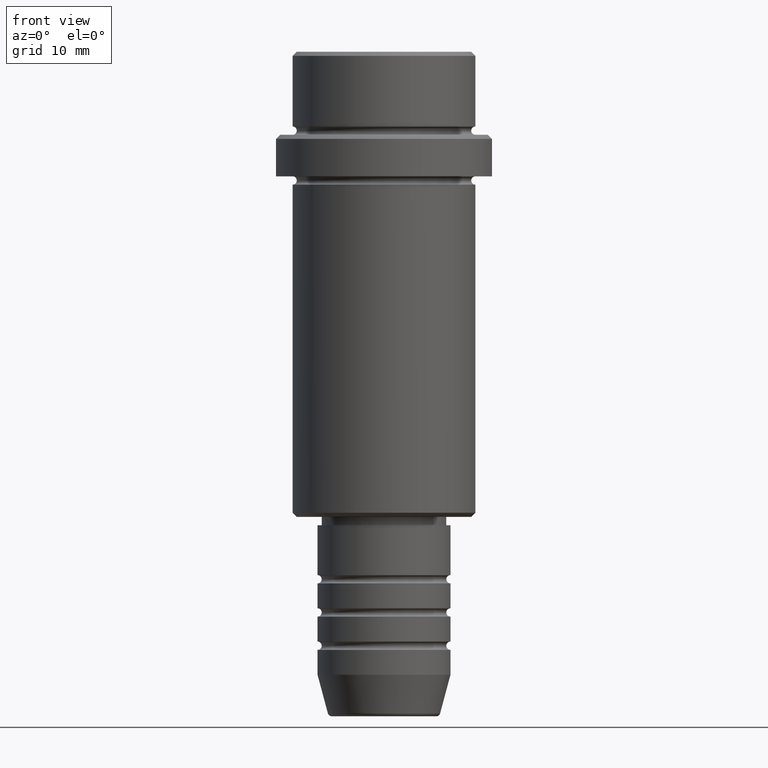
[diagram: clean part render]
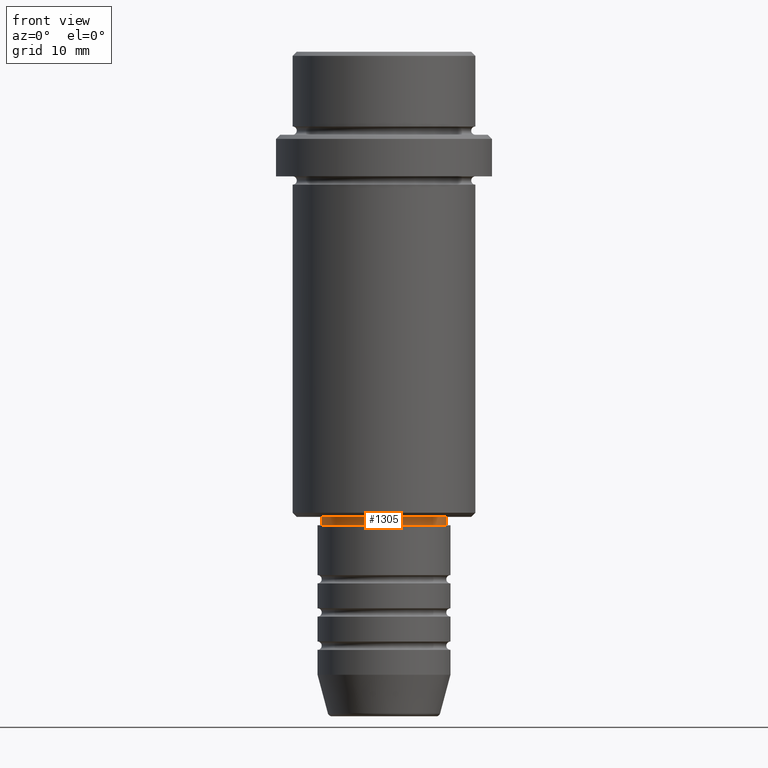
[diagram: same view with one face highlighted and labeled with its STEP entity id]
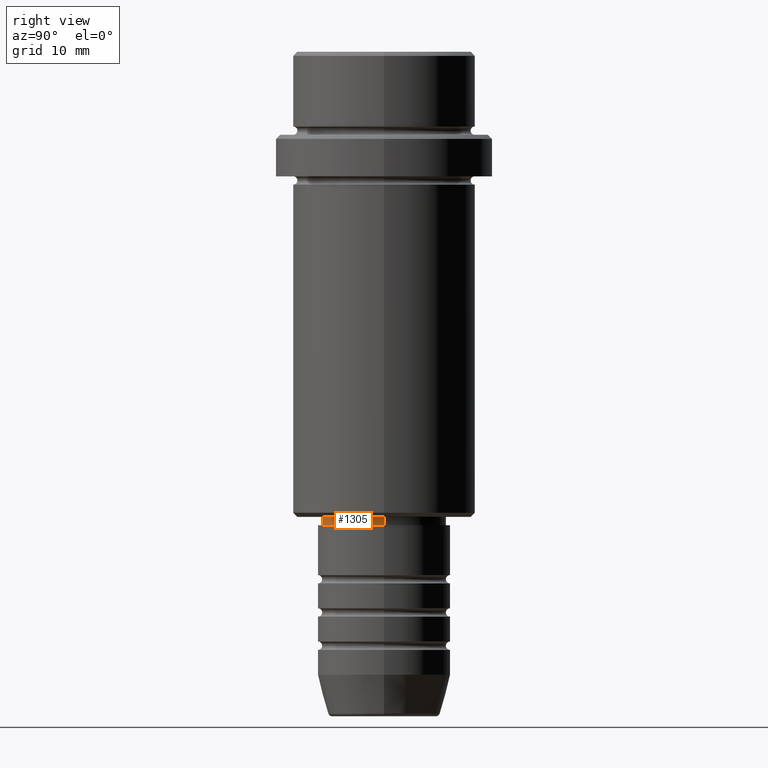
[diagram: same view with one face highlighted and labeled with its STEP entity id]
A machine part, front view. The second image highlights one B-rep face of the part: STEP entity #1305.
A second angle (right view) of the same face is appended — the face is thin or edge-on in the first view.
In plain terms, the highlighted cylindrical surface (partial cylindrical patch) has radius 7.5 mm, axis along (-0, -0, 1).
Its self-contained STEP definition (entity closure, byte-faithful):
#11 = CARTESIAN_POINT ( 'NONE',  ( -7.499999999999963585, 9.184850993605104557E-16, -57.00000000000000000 ) ) ;
#26 = CARTESIAN_POINT ( 'NONE',  ( 0.000000000000000000, 0.000000000000000000, -56.00000000000000000 ) ) ;
#126 = DIRECTION ( 'NONE',  ( 1.000000000000000000, 0.000000000000000000, 0.000000000000000000 ) ) ;
#143 = VERTEX_POINT ( 'NONE', #898 ) ;
#158 = DIRECTION ( 'NONE',  ( 1.000000000000000000, 0.000000000000000000, 0.000000000000000000 ) ) ;
#206 = VECTOR ( 'NONE', #755, 1000.000000000000000 ) ;
#215 = LINE ( 'NONE', #1103, #206 ) ;
#267 = CARTESIAN_POINT ( 'NONE',  ( 0.000000000000000000, 0.000000000000000000, 0.000000000000000000 ) ) ;
#334 = EDGE_CURVE ( 'NONE', #843, #143, #607, .T. ) ;
#367 = EDGE_CURVE ( 'NONE', #1264, #843, #538, .T. ) ;
#375 = DIRECTION ( 'NONE',  ( -0.000000000000000000, -0.000000000000000000, 1.000000000000000000 ) ) ;
#503 = ORIENTED_EDGE ( 'NONE', *, *, #367, .T. ) ;
#538 = CIRCLE ( 'NONE', #582, 7.499999999999963585 ) ;
#564 = CARTESIAN_POINT ( 'NONE',  ( -7.499999999999963585, 9.184850993605104557E-16, -56.00000000000000000 ) ) ;
#572 = EDGE_CURVE ( 'NONE', #1264, #924, #215, .T. ) ;
#582 = AXIS2_PLACEMENT_3D ( 'NONE', #1055, #375, #598 ) ;
#598 = DIRECTION ( 'NONE',  ( 1.000000000000000000, 0.000000000000000000, 0.000000000000000000 ) ) ;
#606 = CIRCLE ( 'NONE', #820, 7.499999999999963585 ) ;
#607 = LINE ( 'NONE', #726, #1160 ) ;
#616 = DIRECTION ( 'NONE',  ( -0.000000000000000000, -0.000000000000000000, 1.000000000000000000 ) ) ;
#726 = CARTESIAN_POINT ( 'NONE',  ( 7.499999999999963585, 0.000000000000000000, 0.000000000000000000 ) ) ;
#728 = CYLINDRICAL_SURFACE ( 'NONE', #1252, 7.499999999999963585 ) ;
#755 = DIRECTION ( 'NONE',  ( -0.000000000000000000, -0.000000000000000000, 1.000000000000000000 ) ) ;
#820 = AXIS2_PLACEMENT_3D ( 'NONE', #26, #1148, #126 ) ;
#831 = ORIENTED_EDGE ( 'NONE', *, *, #572, .F. ) ;
#843 = VERTEX_POINT ( 'NONE', #1021 ) ;
#856 = EDGE_CURVE ( 'NONE', #924, #143, #606, .T. ) ;
#898 = CARTESIAN_POINT ( 'NONE',  ( 7.499999999999963585, 0.000000000000000000, -56.00000000000000000 ) ) ;
#924 = VERTEX_POINT ( 'NONE', #564 ) ;
#1021 = CARTESIAN_POINT ( 'NONE',  ( 7.499999999999963585, 0.000000000000000000, -57.00000000000000000 ) ) ;
#1042 = ORIENTED_EDGE ( 'NONE', *, *, #334, .T. ) ;
#1055 = CARTESIAN_POINT ( 'NONE',  ( 0.000000000000000000, 0.000000000000000000, -57.00000000000000000 ) ) ;
#1103 = CARTESIAN_POINT ( 'NONE',  ( -7.499999999999963585, 9.184850993605104557E-16, 0.000000000000000000 ) ) ;
#1148 = DIRECTION ( 'NONE',  ( -0.000000000000000000, -0.000000000000000000, 1.000000000000000000 ) ) ;
#1160 = VECTOR ( 'NONE', #1269, 1000.000000000000000 ) ;
#1167 = ORIENTED_EDGE ( 'NONE', *, *, #856, .F. ) ;
#1191 = EDGE_LOOP ( 'NONE', ( #831, #503, #1042, #1167 ) ) ;
#1252 = AXIS2_PLACEMENT_3D ( 'NONE', #267, #616, #158 ) ;
#1264 = VERTEX_POINT ( 'NONE', #11 ) ;
#1269 = DIRECTION ( 'NONE',  ( -0.000000000000000000, -0.000000000000000000, 1.000000000000000000 ) ) ;
#1305 = ADVANCED_FACE ( 'NONE', ( #1384 ), #728, .T. ) ;
#1384 = FACE_OUTER_BOUND ( 'NONE', #1191, .T. ) ;